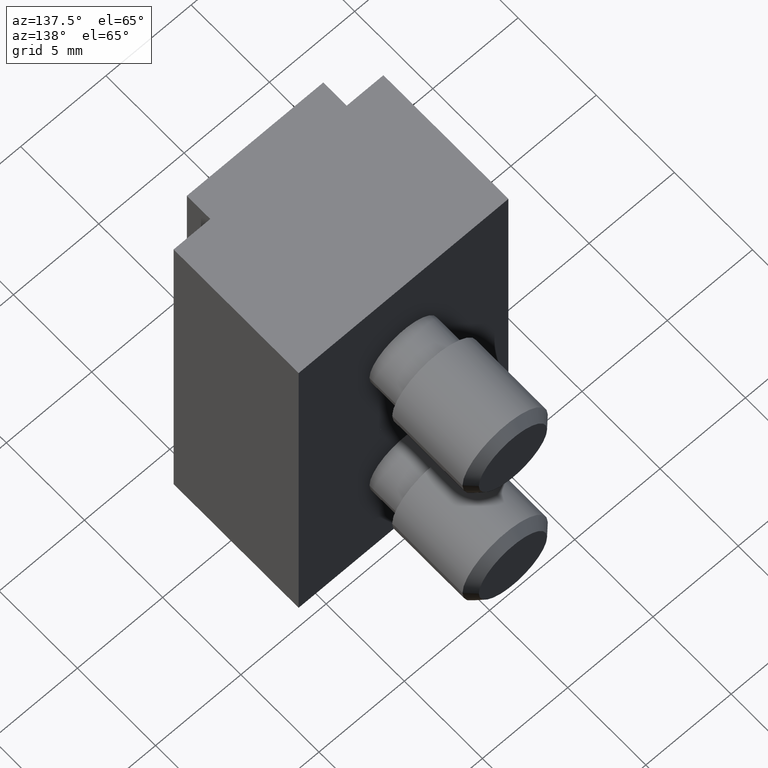
[diagram: clean part render]
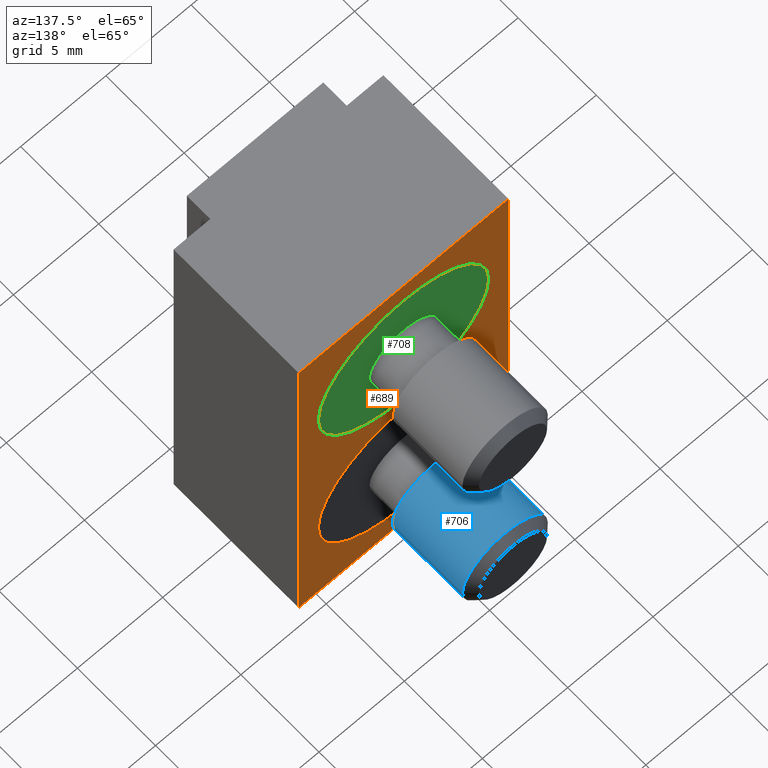
[diagram: same view with three faces highlighted in distinct colors, each labeled with its STEP entity id]
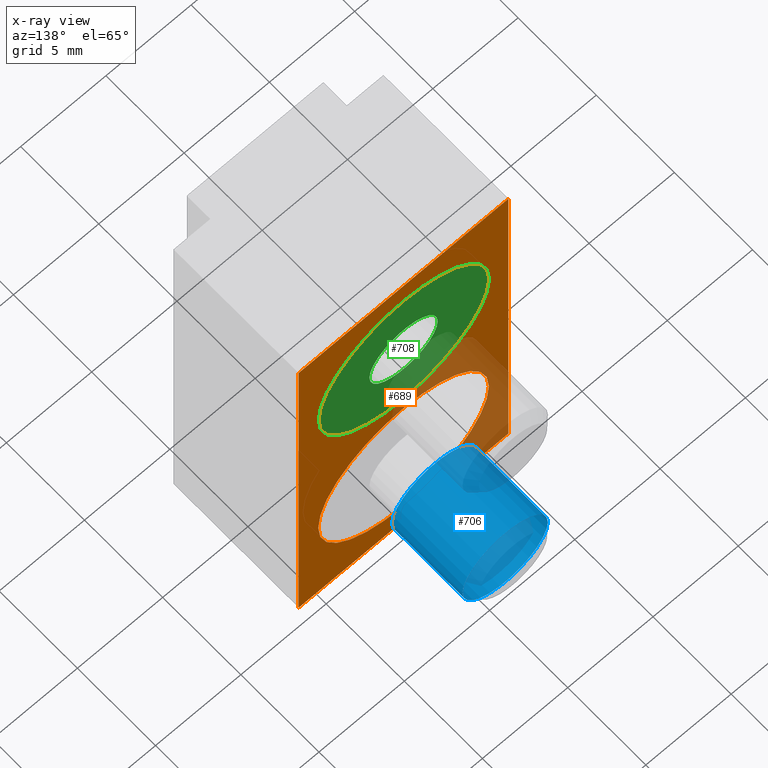
[diagram: x-ray of the same camera — body ghosted, the three highlighted faces saturated]
A machine part, auxiliary view with three faces highlighted in distinct colors.
The next image is the same camera in x-ray (body ghosted, the three faces saturated) — at least one of them is partly hidden behind the body in this view.
Their STEP definitions:

[orange] entity #689 — the highlighted planar face has unit normal (0, 1, 0).
#40=FACE_BOUND('',#141,.T.);
#41=FACE_BOUND('',#142,.T.);
#60=PLANE('',#824);
#93=FACE_OUTER_BOUND('',#140,.T.);
#140=EDGE_LOOP('',(#569,#570,#571,#572));
#141=EDGE_LOOP('',(#573,#574));
#142=EDGE_LOOP('',(#575,#576));
#198=LINE('',#1319,#243);
#209=LINE('',#1341,#254);
#210=LINE('',#1344,#255);
#211=LINE('',#1345,#256);
#243=VECTOR('',#959,10.);
#254=VECTOR('',#980,10.);
#255=VECTOR('',#983,10.);
#256=VECTOR('',#984,10.);
#275=CIRCLE('',#795,5.);
#276=CIRCLE('',#796,5.);
#283=CIRCLE('',#807,5.);
#284=CIRCLE('',#808,5.);
#320=VERTEX_POINT('',#1258);
#321=VERTEX_POINT('',#1259);
#328=VERTEX_POINT('',#1281);
#329=VERTEX_POINT('',#1282);
#337=VERTEX_POINT('',#1305);
#343=VERTEX_POINT('',#1317);
#349=VERTEX_POINT('',#1339);
#350=VERTEX_POINT('',#1343);
#389=EDGE_CURVE('',#320,#321,#275,.T.);
#390=EDGE_CURVE('',#321,#320,#276,.T.);
#400=EDGE_CURVE('',#328,#329,#283,.T.);
#401=EDGE_CURVE('',#329,#328,#284,.T.);
#418=EDGE_CURVE('',#337,#343,#198,.T.);
#429=EDGE_CURVE('',#349,#343,#209,.T.);
#430=EDGE_CURVE('',#349,#350,#210,.T.);
#431=EDGE_CURVE('',#350,#337,#211,.T.);
#569=ORIENTED_EDGE('',*,*,#430,.T.);
#570=ORIENTED_EDGE('',*,*,#431,.T.);
#571=ORIENTED_EDGE('',*,*,#418,.T.);
#572=ORIENTED_EDGE('',*,*,#429,.F.);
#573=ORIENTED_EDGE('',*,*,#389,.T.);
#574=ORIENTED_EDGE('',*,*,#390,.T.);
#575=ORIENTED_EDGE('',*,*,#400,.T.);
#576=ORIENTED_EDGE('',*,*,#401,.T.);
#689=ADVANCED_FACE('',(#93,#40,#41),#60,.T.);
#795=AXIS2_PLACEMENT_3D('',#1260,#898,#899);
#796=AXIS2_PLACEMENT_3D('',#1261,#900,#901);
#807=AXIS2_PLACEMENT_3D('',#1283,#925,#926);
#808=AXIS2_PLACEMENT_3D('',#1284,#927,#928);
#824=AXIS2_PLACEMENT_3D('',#1342,#981,#982);
#898=DIRECTION('center_axis',(0.,-1.,0.));
#899=DIRECTION('ref_axis',(-1.,0.,0.));
#900=DIRECTION('center_axis',(0.,-1.,0.));
#901=DIRECTION('ref_axis',(-1.,0.,0.));
#925=DIRECTION('center_axis',(0.,-1.,0.));
#926=DIRECTION('ref_axis',(-1.,0.,0.));
#927=DIRECTION('center_axis',(0.,-1.,0.));
#928=DIRECTION('ref_axis',(-1.,0.,0.));
#959=DIRECTION('',(-1.,0.,0.));
#980=DIRECTION('',(0.,0.,-1.));
#981=DIRECTION('center_axis',(0.,1.,0.));
#982=DIRECTION('ref_axis',(0.,0.,1.));
#983=DIRECTION('',(1.,0.,0.));
#984=DIRECTION('',(0.,0.,-1.));
#1258=CARTESIAN_POINT('',(-5.,9.5,5.5));
#1259=CARTESIAN_POINT('',(5.,9.5,5.5));
#1260=CARTESIAN_POINT('Origin',(4.14322360639098E-16,9.5,5.5));
#1261=CARTESIAN_POINT('Origin',(4.14322360639098E-16,9.5,5.5));
#1281=CARTESIAN_POINT('',(-5.,9.5,-5.5));
#1282=CARTESIAN_POINT('',(5.,9.5,-5.5));
#1283=CARTESIAN_POINT('Origin',(4.14322360639098E-16,9.5,-5.5));
#1284=CARTESIAN_POINT('Origin',(4.14322360639098E-16,9.5,-5.5));
#1305=CARTESIAN_POINT('',(6.15,9.5,-12.));
#1317=CARTESIAN_POINT('',(-6.15,9.5,-12.));
#1319=CARTESIAN_POINT('',(-6.15,9.5,-12.));
#1339=CARTESIAN_POINT('',(-6.15,9.5,12.));
#1341=CARTESIAN_POINT('',(-6.15,9.5,0.));
#1342=CARTESIAN_POINT('Origin',(-6.15,9.5,0.));
#1343=CARTESIAN_POINT('',(6.15,9.5,12.));
#1344=CARTESIAN_POINT('',(-6.15,9.5,12.));
#1345=CARTESIAN_POINT('',(6.15,9.5,0.));

[blue] entity #706 — the highlighted cylindrical surface (bore or boss wall) has radius 2.5 mm, axis along (0, -1, -0).
#110=FACE_OUTER_BOUND('',#162,.T.);
#162=EDGE_LOOP('',(#641,#642,#643,#644));
#224=LINE('',#1481,#269);
#269=VECTOR('',#1061,2.5);
#297=CIRCLE('',#843,2.5);
#304=CIRCLE('',#855,2.5);
#362=VERTEX_POINT('',#1455);
#369=VERTEX_POINT('',#1477);
#450=EDGE_CURVE('',#362,#362,#297,.T.);
#461=EDGE_CURVE('',#369,#369,#304,.T.);
#462=EDGE_CURVE('',#362,#369,#224,.T.);
#641=ORIENTED_EDGE('',*,*,#450,.T.);
#642=ORIENTED_EDGE('',*,*,#462,.T.);
#643=ORIENTED_EDGE('',*,*,#461,.F.);
#644=ORIENTED_EDGE('',*,*,#462,.F.);
#665=CYLINDRICAL_SURFACE('',#856,2.5);
#706=ADVANCED_FACE('',(#110),#665,.T.);
#843=AXIS2_PLACEMENT_3D('',#1456,#1029,#1030);
#855=AXIS2_PLACEMENT_3D('',#1479,#1057,#1058);
#856=AXIS2_PLACEMENT_3D('',#1480,#1059,#1060);
#1029=DIRECTION('center_axis',(0.,0.,1.));
#1030=DIRECTION('ref_axis',(-1.,0.,0.));
#1057=DIRECTION('center_axis',(0.,0.,1.));
#1058=DIRECTION('ref_axis',(-1.,0.,0.));
#1059=DIRECTION('center_axis',(0.,0.,-1.));
#1060=DIRECTION('ref_axis',(-1.,0.,0.));
#1061=DIRECTION('',(0.,0.,1.));
#1455=CARTESIAN_POINT('',(2.5,3.06161699786838E-16,9.9));
#1456=CARTESIAN_POINT('Origin',(0.,0.,9.9));
#1477=CARTESIAN_POINT('',(2.5,3.06151588455594E-16,14.4));
#1479=CARTESIAN_POINT('Origin',(0.,0.,14.4));
#1480=CARTESIAN_POINT('Origin',(0.,0.,14.9));
#1481=CARTESIAN_POINT('',(2.5,-3.06161699786838E-16,14.9));

[green] entity #708 — the highlighted planar face has unit normal (-0, -1, 0).
#45=FACE_BOUND('',#165,.T.);
#70=PLANE('',#858);
#112=FACE_OUTER_BOUND('',#164,.T.);
#164=EDGE_LOOP('',(#646));
#165=EDGE_LOOP('',(#647));
#296=CIRCLE('',#841,2.);
#305=CIRCLE('',#859,5.);
#361=VERTEX_POINT('',#1451);
#370=VERTEX_POINT('',#1484);
#449=EDGE_CURVE('',#361,#361,#296,.T.);
#463=EDGE_CURVE('',#370,#370,#305,.T.);
#646=ORIENTED_EDGE('',*,*,#463,.F.);
#647=ORIENTED_EDGE('',*,*,#449,.F.);
#708=ADVANCED_FACE('',(#112,#45),#70,.F.);
#841=AXIS2_PLACEMENT_3D('',#1453,#1025,#1026);
#858=AXIS2_PLACEMENT_3D('',#1483,#1064,#1065);
#859=AXIS2_PLACEMENT_3D('',#1485,#1066,#1067);
#1025=DIRECTION('center_axis',(0.,0.,1.));
#1026=DIRECTION('ref_axis',(-1.,0.,0.));
#1064=DIRECTION('center_axis',(0.,0.,-1.));
#1065=DIRECTION('ref_axis',(-1.,0.,0.));
#1066=DIRECTION('center_axis',(0.,0.,-1.));
#1067=DIRECTION('ref_axis',(-1.,0.,0.));
#1451=CARTESIAN_POINT('',(2.,2.44929359829471E-16,7.9));
#1453=CARTESIAN_POINT('Origin',(0.,0.,7.9));
#1483=CARTESIAN_POINT('Origin',(0.,0.,7.9));
#1484=CARTESIAN_POINT('',(5.,6.12323399573677E-16,7.9));
#1485=CARTESIAN_POINT('Origin',(0.,0.,7.9));